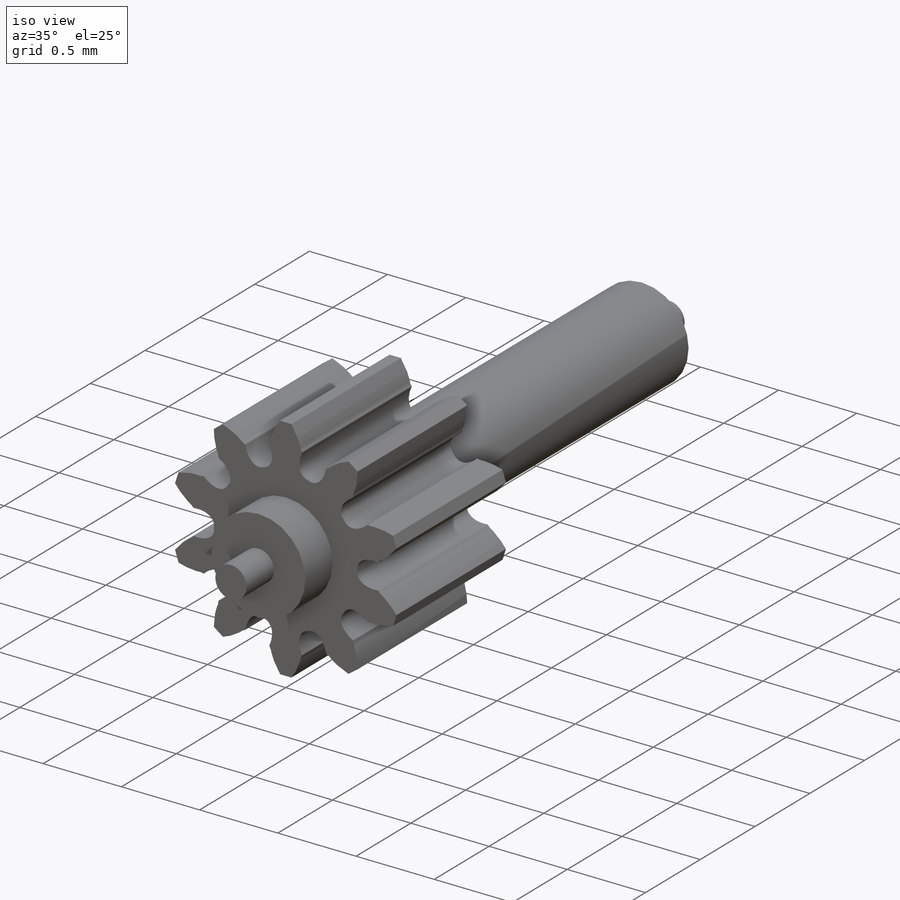
[diagram: iso view]
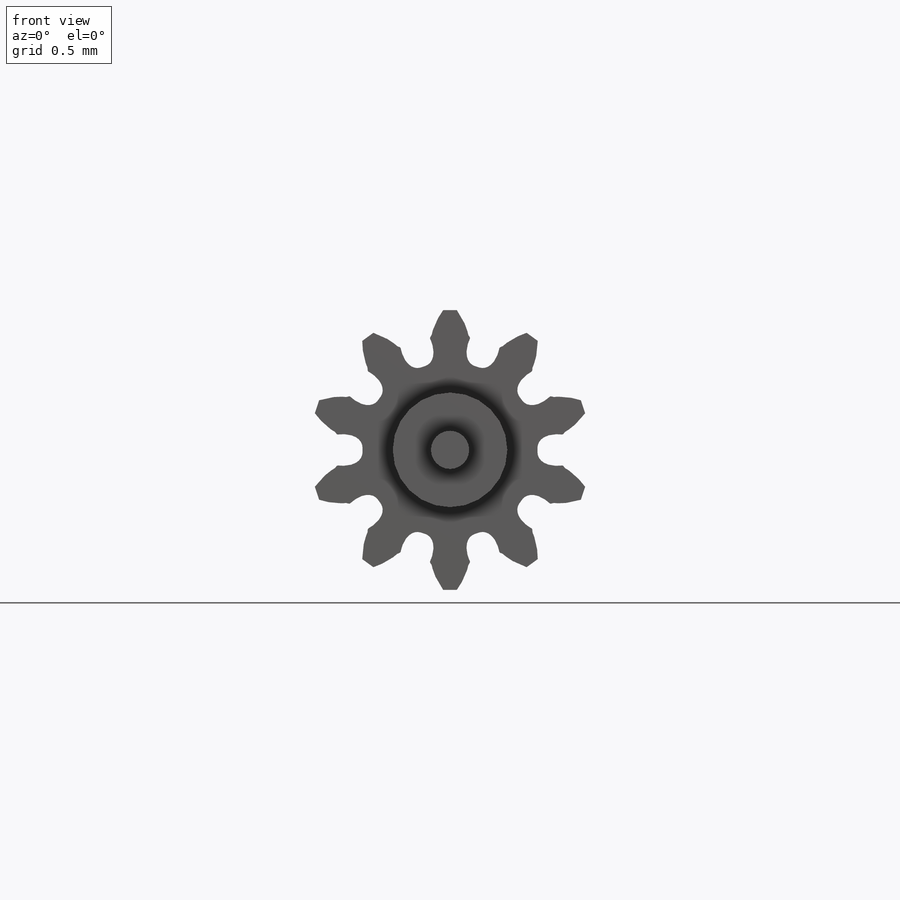
[diagram: front view]
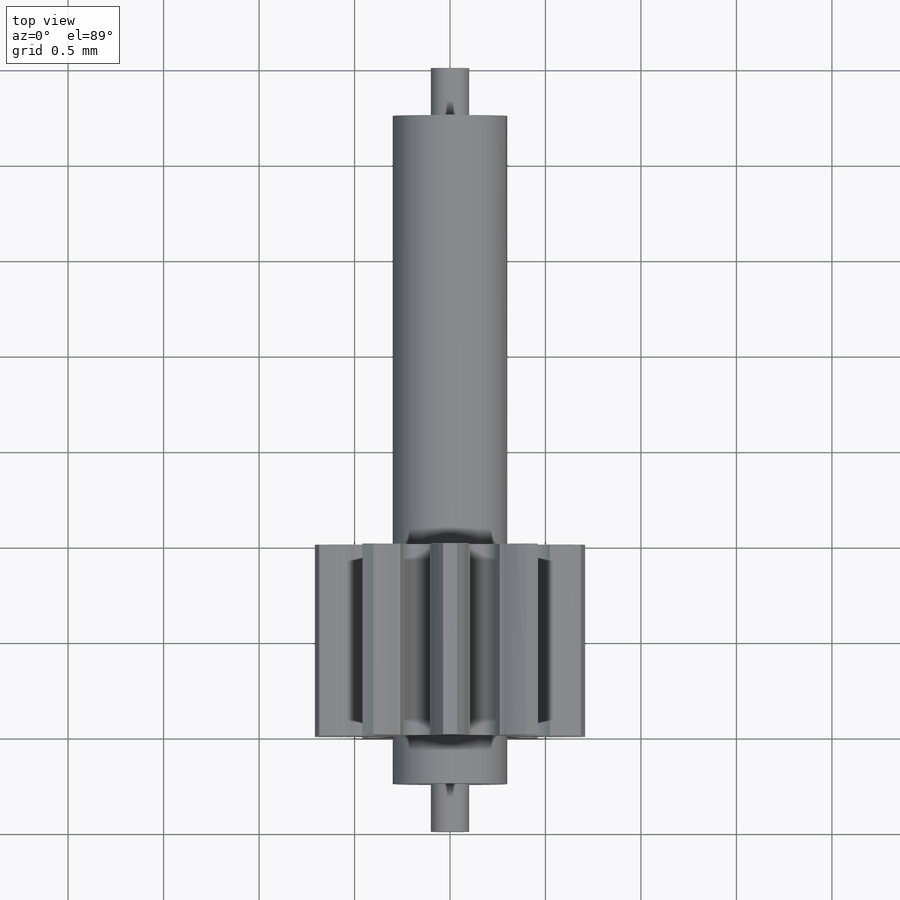
[diagram: top view]
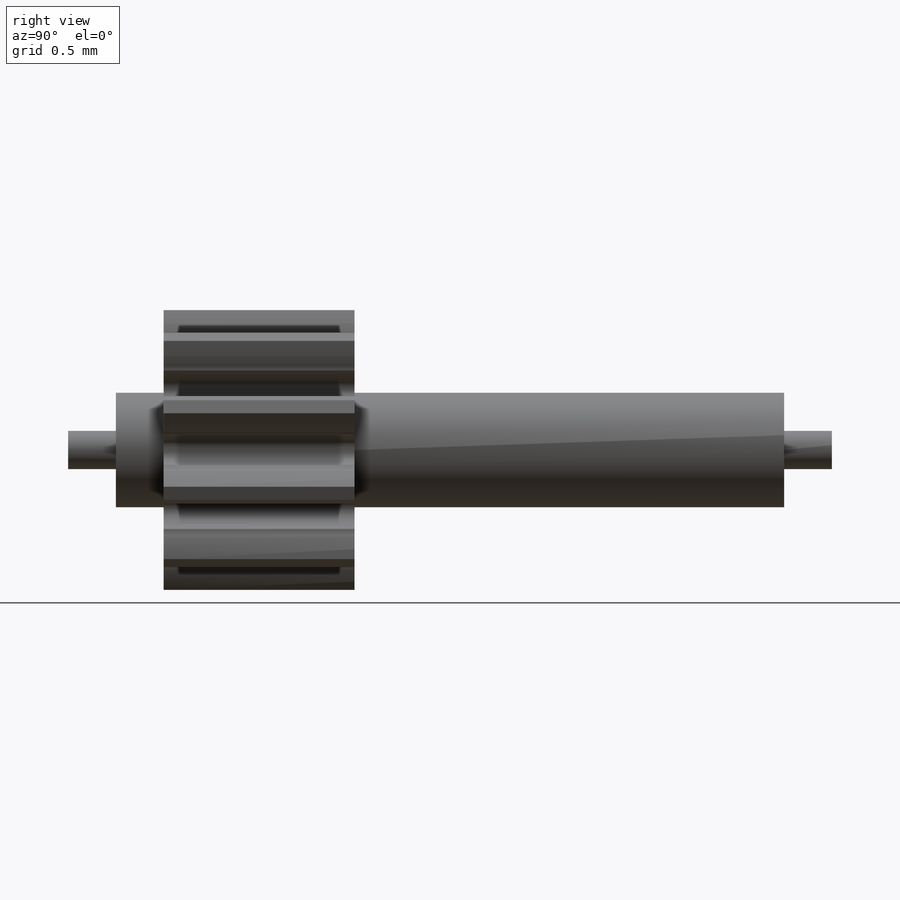
[diagram: right view]
SOLIDWORKS PART (.sldprt)
format: sldprt  version: not decoded by parser v0  size: 391,168 bytes
history: native  units: mm
features: sketch x7, extrude x4, plane x3, material x1, revolve x1, cut_extrude x1, pattern_circular x1 (+8 scaffold rows collapsed)
feature tree (26):
  scaffold x8  (default folders/planes/origin — collapsed)
  material  "Material <sin especificar>"
  plane  "Alzado"
  plane  "Planta"
  plane  "Vista lateral"
  sketch  "SketchRevolveEngranaje 10d"
  revolve  "Engranaje 10d"  Angle=360deg
  sketch  "SketchToothEngranaje 10d"
  cut_extrude  "ToothExtrudeCutEngranaje 10d"  Depth=0.5mm
  pattern_circular  "PatternEngranaje 10d"  Count=10 Angle=36deg
  sketch  "AuxiliarySketchEngranaje 10d"  dims[PitchDiameter=~1.222222mm BaseDiameter=~1.148513mm FormDiameter=~1.196172mm MajorDiameter=~1.466667mm MinorDiameter=~0.916667mm]
  sketch  "Croquis1"  dims[D1=0.6mm]
  extrude  "Saliente-Extruir1"  Depth=0.25mm
  sketch  "Croquis2"  dims[D1=0.2mm]
  extrude  "Saliente-Extruir2"  Depth=0.25mm
  sketch  "Croquis3"  dims[D1=0.6mm]
  extrude  "Saliente-Extruir3"  Depth=2.25mm
  sketch  "Croquis4"  dims[D1=0.2mm]
  extrude  "Saliente-Extruir4"  Depth=0.25mm
decode coverage: 12 of 14 modeling features carry decoded parameters
note: ~ marks probable driven/reference dimensions
note: suppression state not decoded; provenance and decode notes live in map.json
